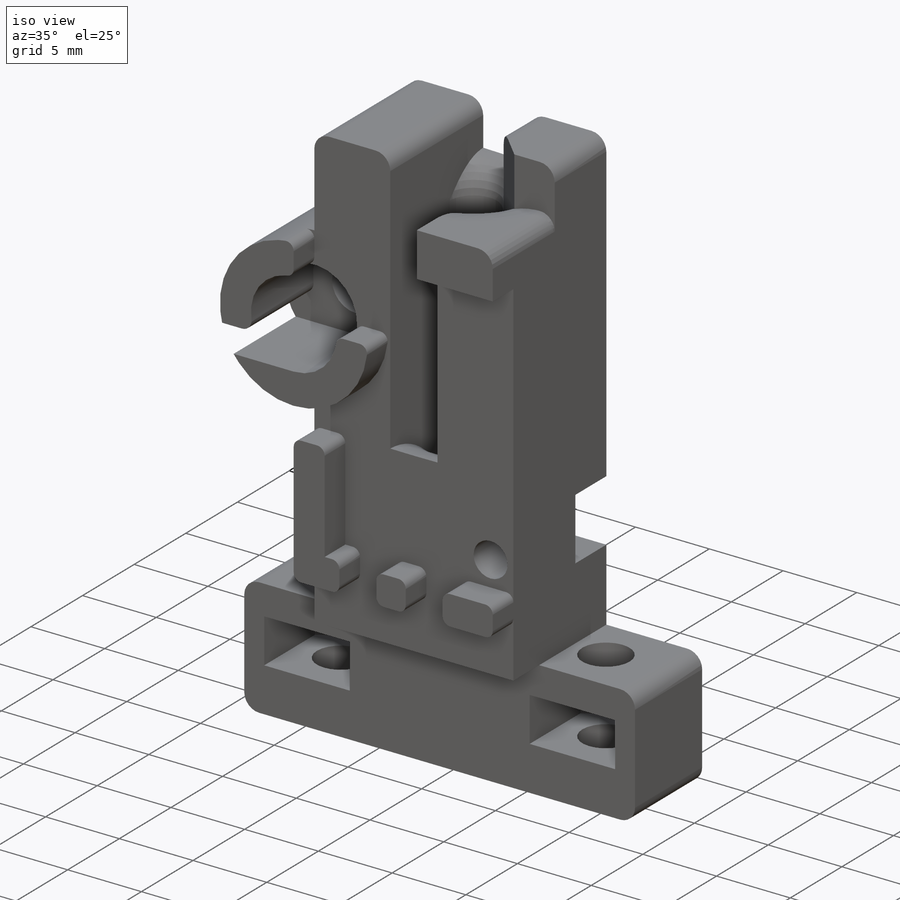
[diagram: iso view]
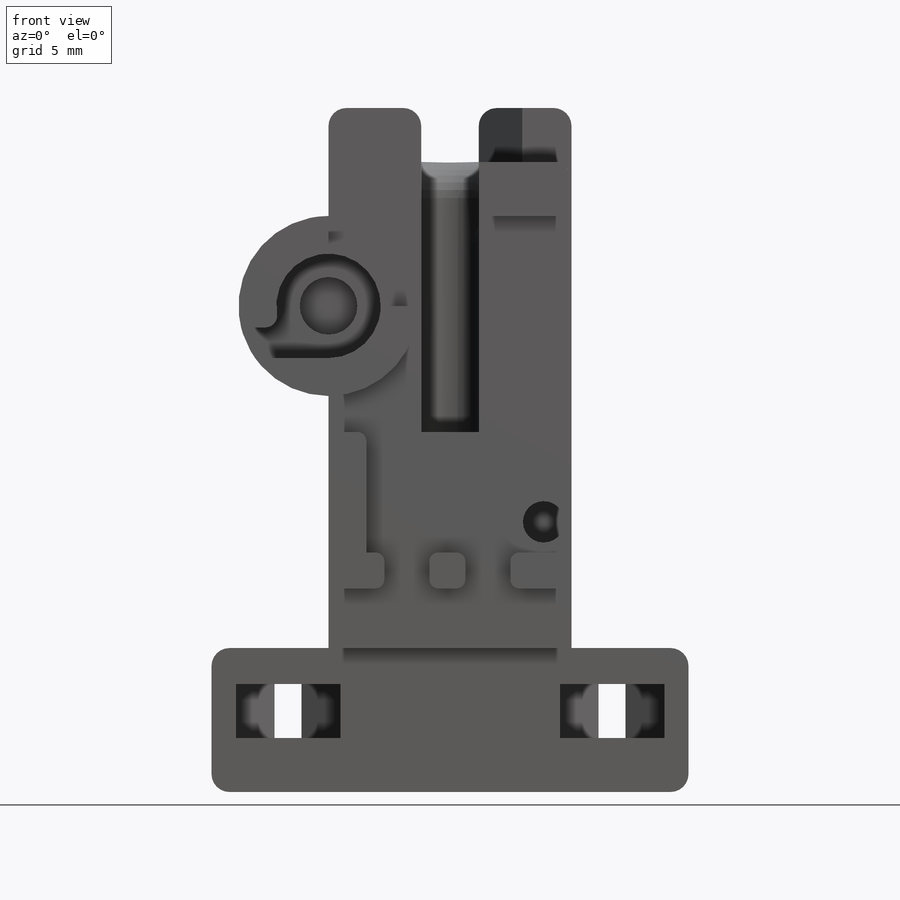
[diagram: front view]
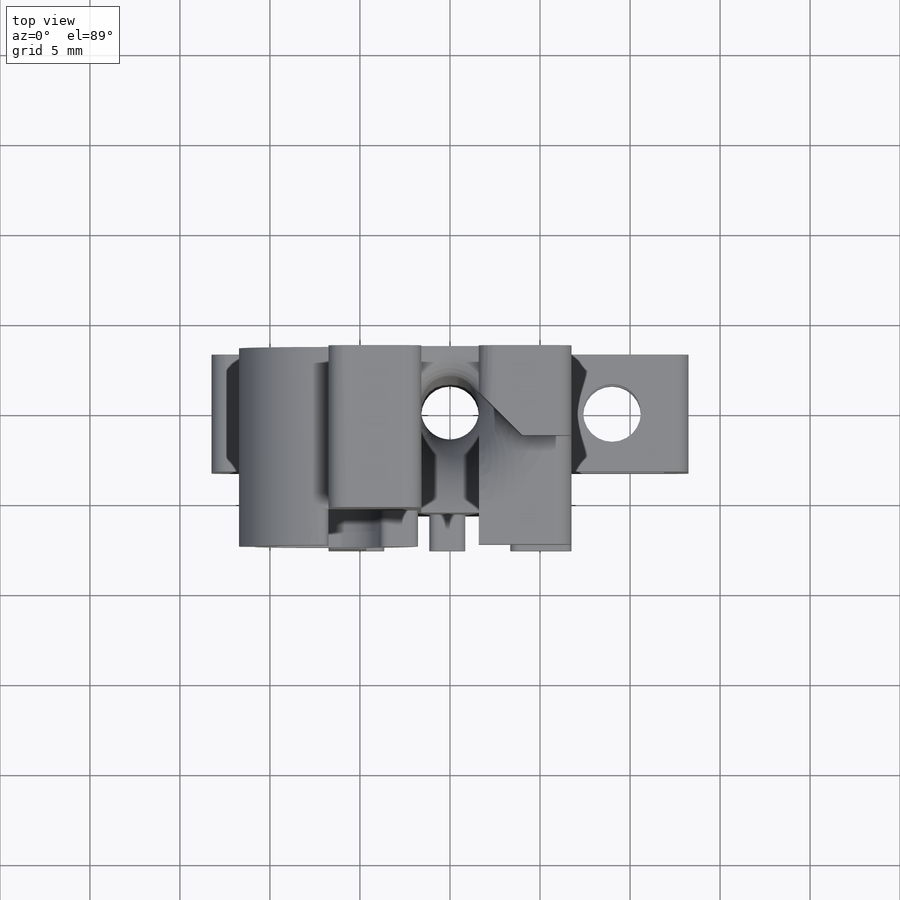
[diagram: top view]
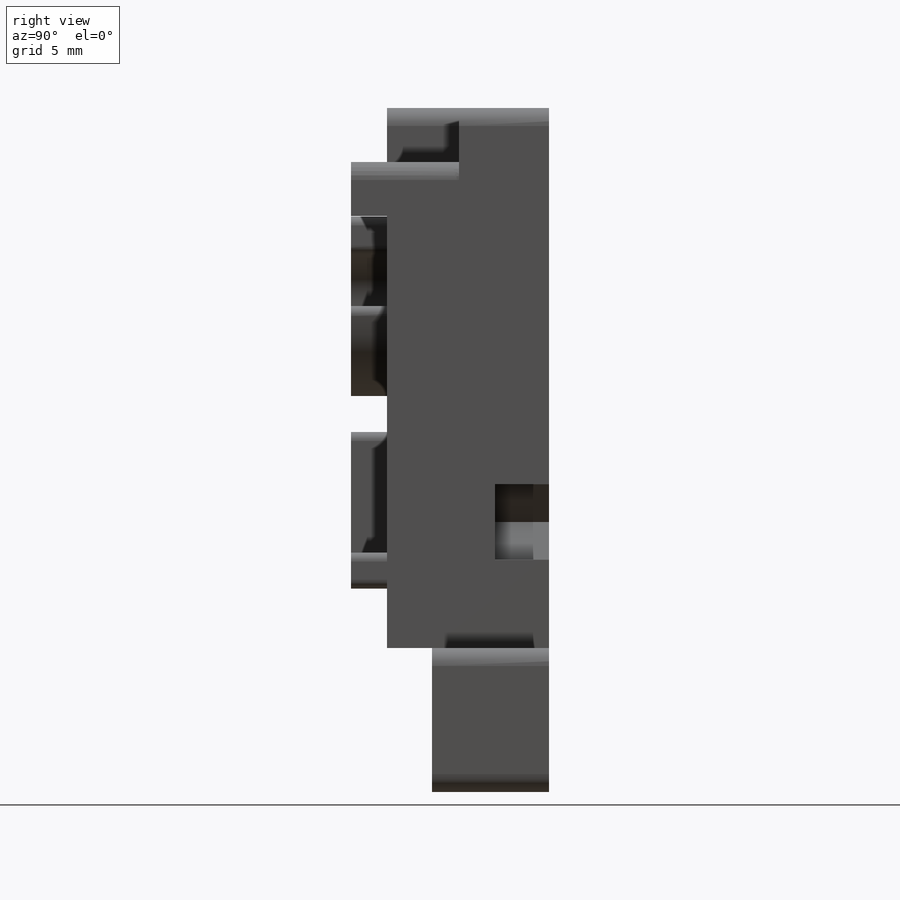
[diagram: right view]
SOLIDWORKS PART (.sldprt)
format: sldprt  version: not decoded by parser v0  size: 822,784 bytes
history: native  units: mm
features: sketch x23, cut_extrude x15, extrude x7, fillet x7, material x1 (+12 scaffold rows collapsed)
feature tree (65):
  scaffold x12  (default folders/planes/origin — collapsed)
  material  "Material <not specified>"
  sketch  "Sketch18"  dims[D1=8.0mm D2=20.0mm D3=6.5mm D4=30.0mm]
  extrude  "Boss-Extrude7"  Depth=6.5mm
  sketch  "Sketch19"  dims[D1=3.2mm]
  cut_extrude  "Cut-Extrude12"  [1 undecoded]
  sketch  "Sketch20"
  extrude  "Boss-Extrude8"  Depth=2.5mm
  sketch  "Sketch21"
  cut_extrude  "Cut-Extrude13"  Depth=20mm
  sketch  "Sketch22"  dims[D1=3.2mm D2=18.0mm]
  cut_extrude  "Cut-Extrude14"  [1 undecoded]
  fillet  "Fillet1"  Radius=4.5mm
  sketch  "Sketch23"  dims[c1.D1=~8.023814mm c2.D1=45.0deg c2.D2=4.0mm]
  cut_extrude  "Cut-Extrude15"  Depth=3mm
  sketch  "Sketch24"  dims[D1=0.0mm]
  sketch  "Sketch25"  dims[c1.D2=2.3mm c1.D1=1.5mm c2.D2=~3.488911mm c3.D2=90.0deg]
  cut_extrude  "Cut-Extrude16"  [1 undecoded]
  sketch  "Sketch26"  dims[D1=4.2mm]
  cut_extrude  "Cut-Extrude17"  Depth=3mm
  sketch  "Sketch27"  dims[D1=0.0mm]
  extrude  "Boss-Extrude9"  Depth=0.2mm
  sketch  "Sketch28"  dims[D2=1.0mm D3=5.0mm D4=2.0mm D5=2.5mm D6=2.5mm D1=0.2mm]
  extrude  "Boss-Extrude10"  Depth=2mm
  sketch  "Sketch31"
  extrude  "Boss-Extrude11"  Depth=4.5mm
  fillet  "Fillet3"  Radius=4.5mm
  sketch  "Sketch39"
  cut_extrude  "Cut-Extrude24"  [1 undecoded]
  fillet  "Fillet8"  Radius=2mm
  sketch  "Sketch32"
  fillet  "Fillet5"  Radius=0.5mm
  cut_extrude  "Cut-Extrude26"  Depth=10mm
  sketch  "Sketch40"  dims[D1=5.0mm D2=2.5mm D3=11.0mm]
  extrude  "Boss-Extrude15"  [1 undecoded]
  sketch  "Sketch41"  dims[D1=5.1mm]
  cut_extrude  "Cut-Extrude27"  Depth=4mm
  sketch  "Sketch42"  dims[D1=1.0mm D2=15.0mm]
  cut_extrude  "Cut-Extrude28"  [1 undecoded]
  fillet  "Fillet9"  Radius=1mm
  sketch  "Sketch43"  dims[D1=5.7mm]
  cut_extrude  "Cut-Extrude32"  Depth=2.5mm
  sketch  "Sketch44"  dims[D1=3.2mm]
  cut_extrude  "Cut-Extrude33"  Depth=0.2mm
  fillet  "Fillet10"  Radius=1mm
  sketch  "Sketch45"
  cut_extrude  "Cut-Extrude34"  [1 undecoded]
  sketch  "Sketch46"  dims[D1=5.8mm D2=5.8mm]
  cut_extrude  "Cut-Extrude35"  Depth=3mm
  sketch  "Sketch47"  dims[D1=1.5mm]
  cut_extrude  "Cut-Extrude36"  [1 undecoded]
  sketch  "Sketch48"  dims[D2=3.0mm D1=0.0mm]
  extrude  "Boss-Extrude16"  Depth=2mm
  fillet  "Fillet11"  Radius=0.5mm
decode coverage: 38 of 52 modeling features carry decoded parameters
note: ~ marks probable driven/reference dimensions
note: 8 parameter values undecoded
summary: no parameter record found for 8 features
note: suppression state not decoded; provenance and decode notes live in map.json
